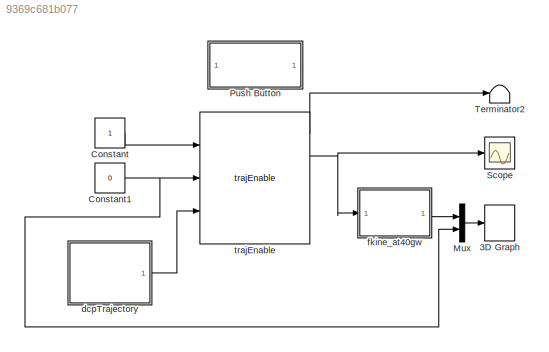
MODEL slx_9369c681b077
KIND model
CONFIG AbsTol = auto
CONFIG FixedStep = 0.001
CONFIG MaxStep = auto
CONFIG MinStep = auto
CONFIG RelTol = 1e-3
CONFIG SampleTimeConstraint = Unconstrained
CONFIG Solver = ode5
CONFIG SolverMode = Auto
CONFIG SolverName = ode5
CONFIG StartTime = 0.0
CONFIG StopTime = inf
BLOCK [S-Function] 3D Graph
  CopyFcn = if exist('sfun3d','file'), sfun3d([],[],[],'CopyBlock'); end
  DeleteFcn = if exist('sfun3d','file'), sfun3d([],[],[],'DeleteBlock'); end
  EnableBusSupport = off
  FunctionName = sfun3d
  LoadFcn = if exist('sfun3d','file'), sfun3d([],[],[],'LoadBlock'); end
  NameChangeFcn = if exist('sfun3d','file'), sfun3d([],[],[],'NameChange'); end
  Parameters = ax,T,np,cp,gd,ls,mk
  Ports = [1]
  SFunctionDeploymentMode = off
BLOCK [Constant] Constant
BLOCK [Constant] Constant1
  Value = 0
BLOCK [Mux] Mux
  DisplayOption = bar
  Inputs = 2
  Ports = [2, 1]
BLOCK [SubSystem] Push Button
  DialogController = hmiCreateDDGDialog
  IsWebBlock = on
  Ports = []
  RequestExecContextInheritance = off
  Variant = off
BLOCK [Scope] Scope
  Ports = [1]
  ScopeSpecificationString = Simulink.scopes.TimeScopeBlockCfg('CurrentConfiguration', extmgr.ConfigurationSet(extmgr.Configuration('Core','General UI',true),extmgr.Configuration('Core','Source UI',true),extmgr.Configuration('Sources','WiredSimulink',true),extmgr.Configuration('Visuals','Time Domain',true,'SerializedDisplays',{struct('MinYLimReal','-50.88095','MaxYLimReal','473.04035','YLabelReal','','MinYLimMag','0.00000','M...<+1422ch>
BLOCK [Terminator] Terminator2
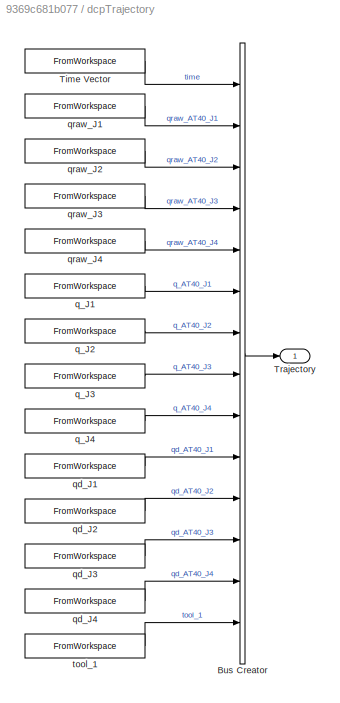
BLOCK [SubSystem] dcpTrajectory
  Ports = [0, 1]
  RequestExecContextInheritance = off
  Variant = off
BLOCK [BusCreator] dcpTrajectory/Bus Creator
  DisplayOption = bar
  InheritFromInputs = on
  Inputs = 'time','qraw_AT40_J1','qraw_AT40_J2','qraw_AT40_J3','qraw_AT40_J4','q_AT40_J1','q_AT40_J2','q_AT40_J3','q_AT40_J4','qd_AT40_J1','qd_AT40_J2','qd_AT40_J3','qd_AT40_J4','tool_1'
  Ports = [14, 1]
BLOCK [FromWorkspace] dcpTrajectory/Time Vector
  SampleTime = 0
  VariableName = [qrawseries.time]'
  ZeroCross = on
BLOCK [Outport] dcpTrajectory/Trajectory
  IconDisplay = Port number
BLOCK [FromWorkspace] dcpTrajectory/q_J1
  SampleTime = 0
  VariableName = qseries.data(:,1)'
  ZeroCross = on
BLOCK [FromWorkspace] dcpTrajectory/q_J2
  SampleTime = 0
  VariableName = qseries.data(:,2)'
  ZeroCross = on
BLOCK [FromWorkspace] dcpTrajectory/q_J3
  SampleTime = 0
  VariableName = qseries.data(:,3)'
  ZeroCross = on
BLOCK [FromWorkspace] dcpTrajectory/q_J4
  SampleTime = 0
  VariableName = qseries.data(:,4)'
  ZeroCross = on
BLOCK [FromWorkspace] dcpTrajectory/qd_J1
  SampleTime = 0
  VariableName = qdseries.data(:,1)'
  ZeroCross = on
BLOCK [FromWorkspace] dcpTrajectory/qd_J2
  SampleTime = 0
  VariableName = qdseries.data(:,2)'
  ZeroCross = on
BLOCK [FromWorkspace] dcpTrajectory/qd_J3
  SampleTime = 0
  VariableName = qdseries.data(:,3)'
  ZeroCross = on
BLOCK [FromWorkspace] dcpTrajectory/qd_J4
  SampleTime = 0
  VariableName = qdseries.data(:,4)'
  ZeroCross = on
BLOCK [FromWorkspace] dcpTrajectory/qraw_J1
  SampleTime = 0
  VariableName = qrawseries.data(:,1)'
  ZeroCross = on
BLOCK [FromWorkspace] dcpTrajectory/qraw_J2
  SampleTime = 0
  VariableName = qrawseries.data(:,2)'
  ZeroCross = on
BLOCK [FromWorkspace] dcpTrajectory/qraw_J3
  SampleTime = 0
  VariableName = qrawseries.data(:,3)'
  ZeroCross = on
BLOCK [FromWorkspace] dcpTrajectory/qraw_J4
  SampleTime = 0
  VariableName = qrawseries.data(:,4)'
  ZeroCross = on
BLOCK [FromWorkspace] dcpTrajectory/tool_1
  SampleTime = 0
  VariableName = toolseries.data(:,1)'
  ZeroCross = on
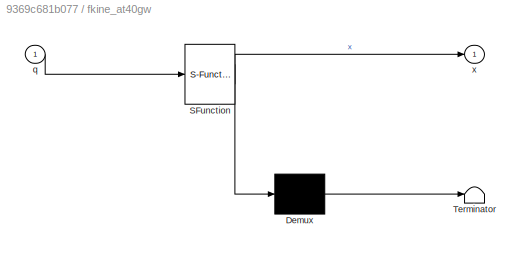
BLOCK [SubSystem] fkine_at40gw
  ErrorFcn = Stateflow.Translate.translate
  PermitHierarchicalResolution = ExplicitOnly
  Ports = [1, 1]
  RequestExecContextInheritance = off
  SFBlockType = MATLAB Function
  TreatAsAtomicUnit = on
  Variant = off
BLOCK [Demux] fkine_at40gw/ Demux 
  Outputs = 1
  Ports = [1, 1]
BLOCK [S-Function] fkine_at40gw/ SFunction 
  EnableBusSupport = on
  FunctionName = sf_sfun
  PortCounts = [1 2]
  Ports = [1, 2]
  SFunctionDeploymentMode = off
  Tag = Stateflow S-Function slxfkineDemo 2
BLOCK [Terminator] fkine_at40gw/ Terminator 
BLOCK [Inport] fkine_at40gw/q
  IconDisplay = Port number
BLOCK [Outport] fkine_at40gw/x
  IconDisplay = Port number
BLOCK [Reference] trajEnable  REF=dcpctrl/trajEnable
  Ports = [3, 5]
  SourceBlock = dcpctrl/trajEnable
  SourceType = SubSystem
NET Constant1:1 -> Mux:2, trajEnable:2
LINE Constant:1 -> trajEnable:1
LINE Mux:1 -> 3D Graph:1
LINE dcpTrajectory/Bus Creator:1 -> dcpTrajectory/Trajectory:1
LINE dcpTrajectory/Time Vector:1 -> dcpTrajectory/Bus Creator:1
LINE dcpTrajectory/q_J1:1 -> dcpTrajectory/Bus Creator:6
LINE dcpTrajectory/q_J2:1 -> dcpTrajectory/Bus Creator:7
LINE dcpTrajectory/q_J3:1 -> dcpTrajectory/Bus Creator:8
LINE dcpTrajectory/q_J4:1 -> dcpTrajectory/Bus Creator:9
LINE dcpTrajectory/qd_J1:1 -> dcpTrajectory/Bus Creator:10
LINE dcpTrajectory/qd_J2:1 -> dcpTrajectory/Bus Creator:11
LINE dcpTrajectory/qd_J3:1 -> dcpTrajectory/Bus Creator:12
LINE dcpTrajectory/qd_J4:1 -> dcpTrajectory/Bus Creator:13
LINE dcpTrajectory/qraw_J1:1 -> dcpTrajectory/Bus Creator:2
LINE dcpTrajectory/qraw_J2:1 -> dcpTrajectory/Bus Creator:3
LINE dcpTrajectory/qraw_J3:1 -> dcpTrajectory/Bus Creator:4
LINE dcpTrajectory/qraw_J4:1 -> dcpTrajectory/Bus Creator:5
LINE dcpTrajectory/tool_1:1 -> dcpTrajectory/Bus Creator:14
LINE dcpTrajectory:1 -> trajEnable:3
LINE fkine_at40gw:1 -> Mux:1
LINE trajEnable:1 -> Terminator2:1
NET trajEnable:2 -> Scope:1, fkine_at40gw:1
note: NET lines group one-source signal fan-out (src -> all destinations, sorted); 1:1 wires keep LINE
CHART fkine_at40gw states=1 transitions=1
  STATE_LABEL 'eML_blk_kernel()'
  STATE_LABEL 'SCRIPT:\nfunction x = fcn(q)\n%#codegen\n\nx_temp = fkine_at40gw(q(1),q(2),q(3),q(4))*[1;0;0;0];\nx = x_temp(2:4);'
